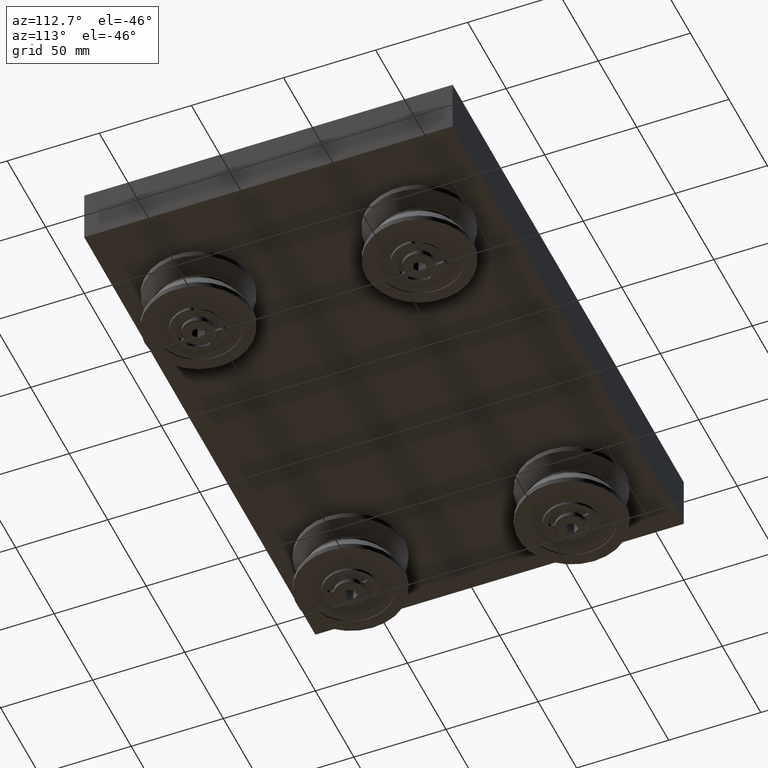
[diagram: clean part render]
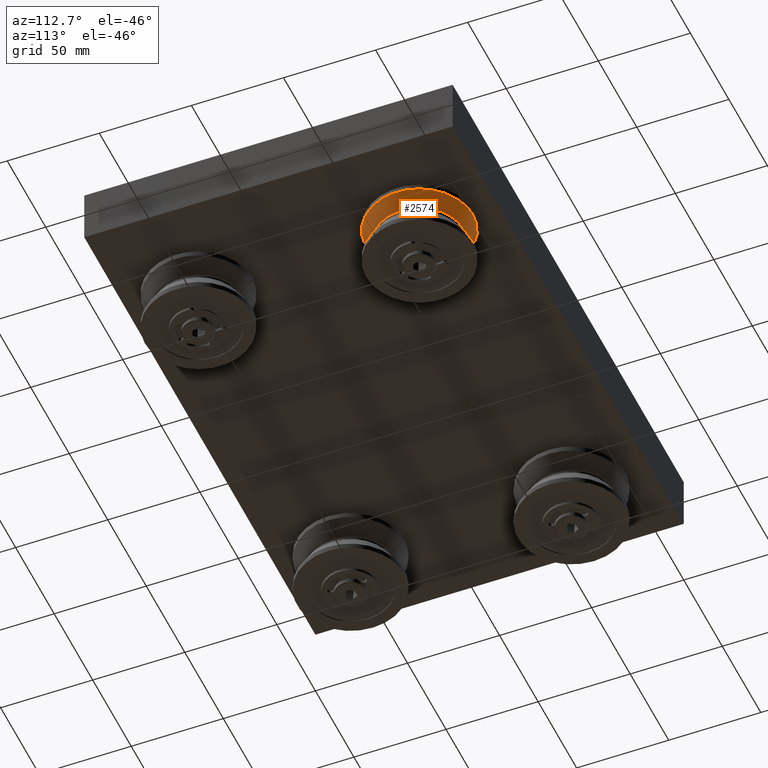
[diagram: same view with one face highlighted and labeled with its STEP entity id]
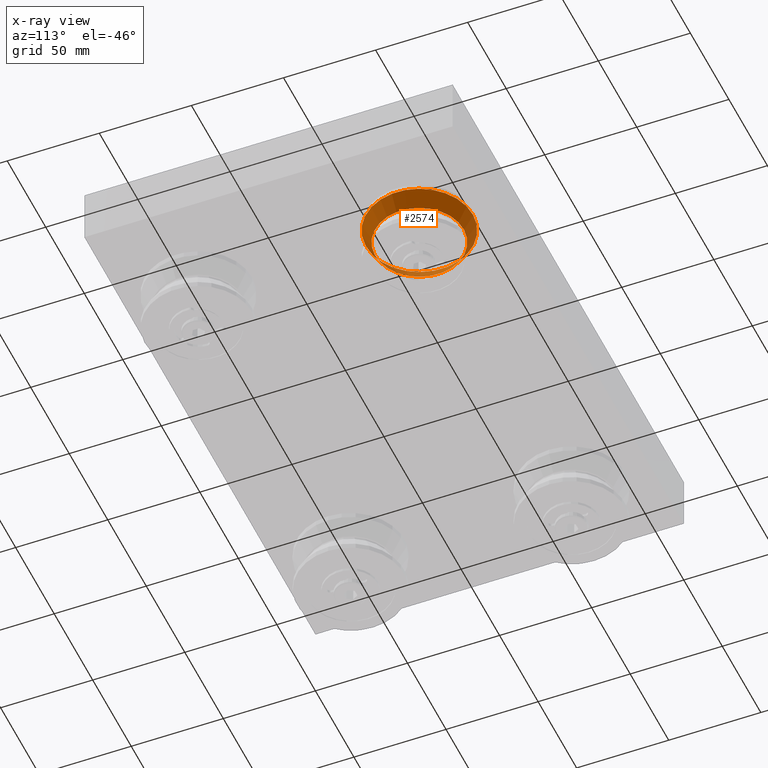
[diagram: x-ray of the same camera — body ghosted, the highlighted face saturated]
A machine part, auxiliary view. The second image highlights one B-rep face of the part: STEP entity #2574.
The next image is the same camera in x-ray: the body ghosted, the highlighted face saturated — about 0% of this face is hidden behind the body in this view.
In plain terms, the highlighted conical surface has half-angle 30 deg.
Its self-contained STEP definition (entity closure, byte-faithful):
#96=CONICAL_SURFACE('',#3034,26.5007386859688,0.5235987755983);
#286=LINE('',#4498,#485);
#485=VECTOR('',#3718,26.5007386859688);
#729=FACE_OUTER_BOUND('',#918,.T.);
#918=EDGE_LOOP('',(#2144,#2145,#2146,#2147));
#1059=CIRCLE('',#3033,24.0014773719376);
#1060=CIRCLE('',#3035,29.);
#1254=VERTEX_POINT('',#4493);
#1255=VERTEX_POINT('',#4496);
#1561=EDGE_CURVE('',#1254,#1254,#1059,.T.);
#1562=EDGE_CURVE('',#1255,#1255,#1060,.T.);
#1563=EDGE_CURVE('',#1255,#1254,#286,.T.);
#2144=ORIENTED_EDGE('',*,*,#1562,.F.);
#2145=ORIENTED_EDGE('',*,*,#1563,.T.);
#2146=ORIENTED_EDGE('',*,*,#1561,.T.);
#2147=ORIENTED_EDGE('',*,*,#1563,.F.);
#2574=ADVANCED_FACE('',(#729),#96,.T.);
#3033=AXIS2_PLACEMENT_3D('',#4494,#3712,#3713);
#3034=AXIS2_PLACEMENT_3D('',#4495,#3714,#3715);
#3035=AXIS2_PLACEMENT_3D('',#4497,#3716,#3717);
#3712=DIRECTION('center_axis',(1.,0.,0.));
#3713=DIRECTION('ref_axis',(0.,1.,0.));
#3714=DIRECTION('center_axis',(1.,0.,0.));
#3715=DIRECTION('ref_axis',(0.,1.,0.));
#3716=DIRECTION('center_axis',(1.,0.,0.));
#3717=DIRECTION('ref_axis',(0.,1.,0.));
#3718=DIRECTION('',(-0.866025403784438,0.500000000000001,6.12323399573677E-17));
#4493=CARTESIAN_POINT('',(0.949999999999999,-24.0014773719376,-2.9393332438351E-15));
#4494=CARTESIAN_POINT('Origin',(0.95,0.,0.));
#4495=CARTESIAN_POINT('Origin',(5.27884757729337,0.,0.));
#4496=CARTESIAN_POINT('',(9.60769515458674,-29.,-3.55147571752732E-15));
#4497=CARTESIAN_POINT('Origin',(9.60769515458674,0.,0.));
#4498=CARTESIAN_POINT('',(5.27884757729337,-26.5007386859688,-3.24540448068121E-15));